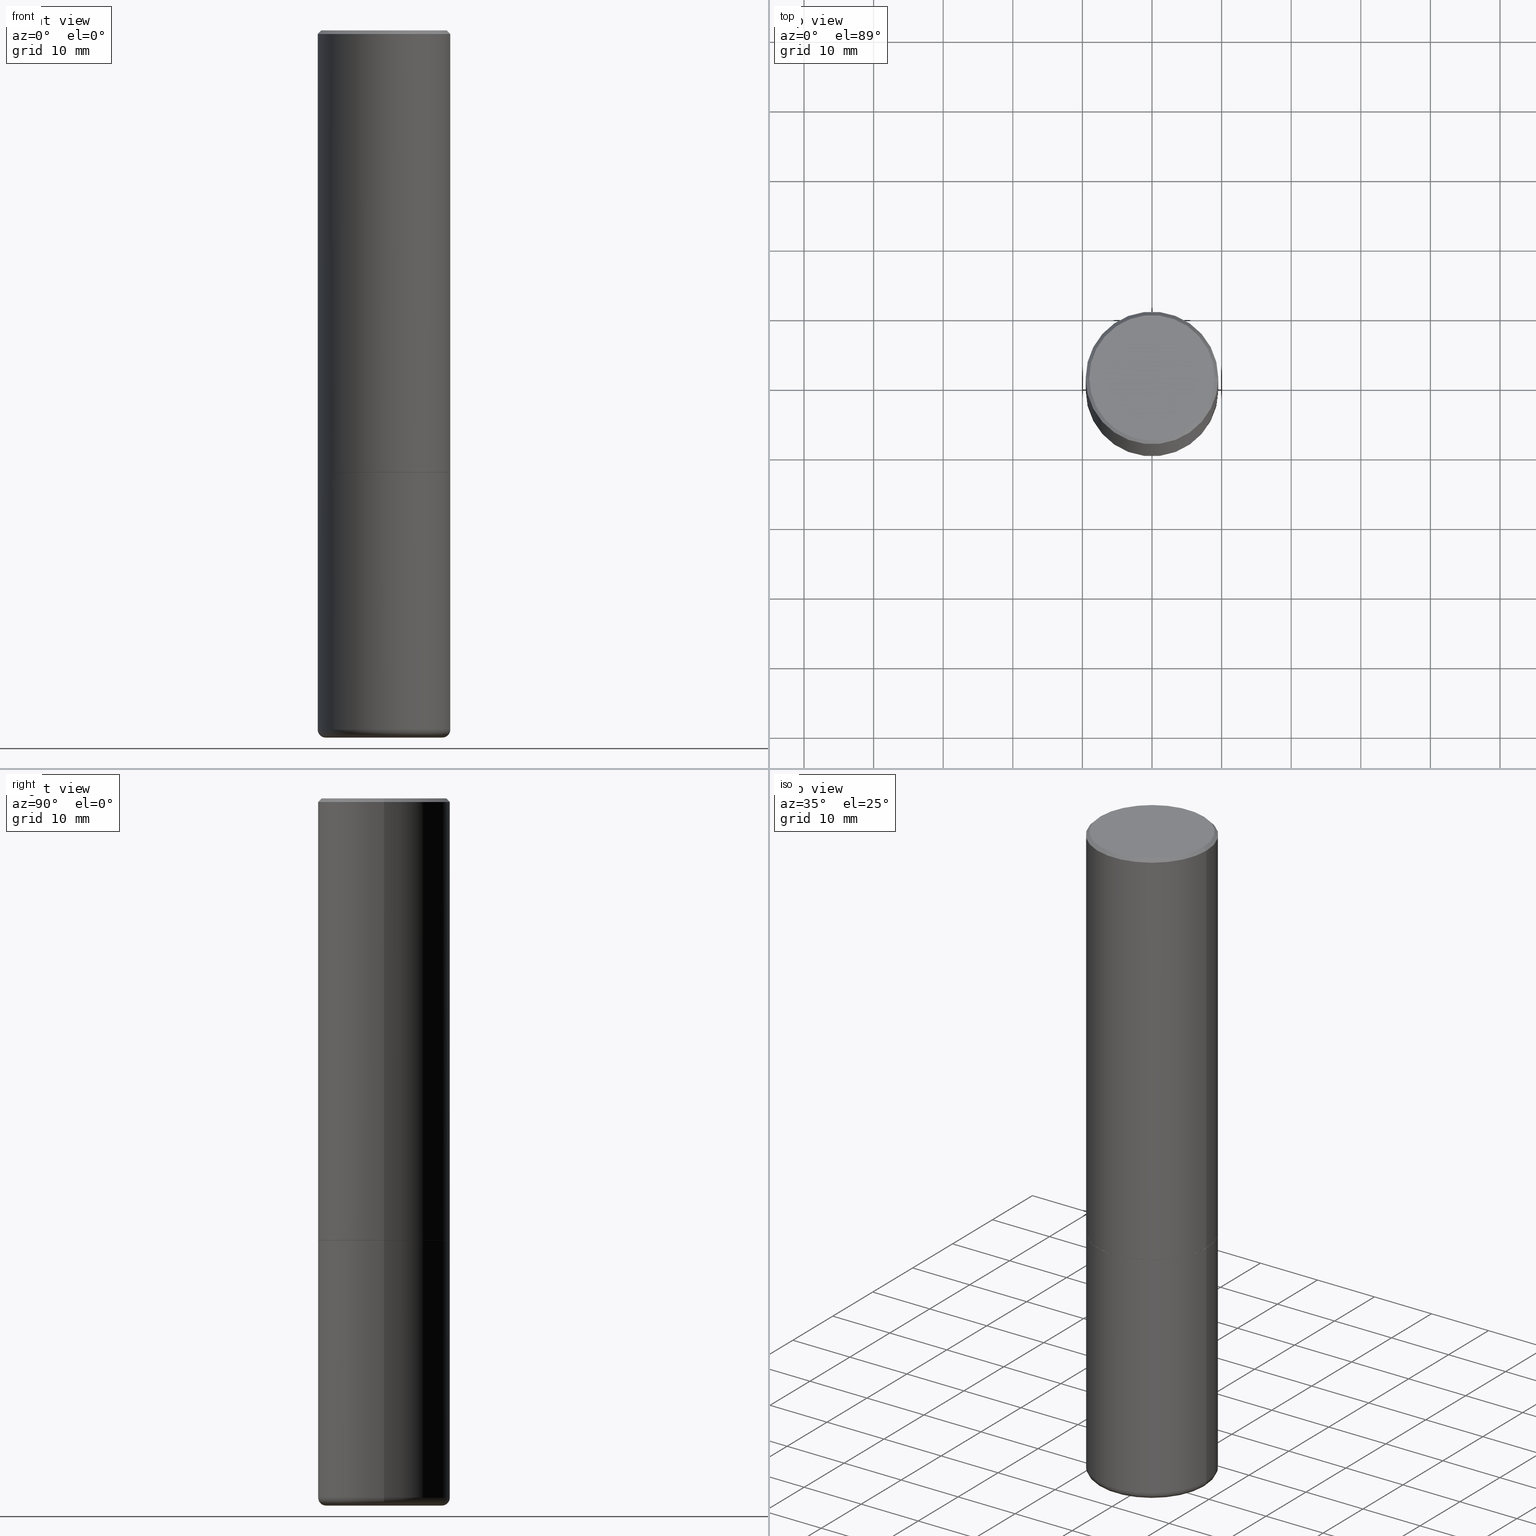
[diagram: canonical four-view strip — front | top / right | iso, engineering-drawing reading convention]
A machine part, canonical four-view strip (front | top / right | iso — engineering-drawing reading convention). The complete STEP part file that produces these views, byte-faithful:
ISO-10303-21;
HEADER;
FILE_DESCRIPTION (( 'STEP AP203' ),
    '1' );
FILE_NAME ('38146.STEP',
    '2023-03-22T20:24:01',
    ( '' ),
    ( '' ),
    'SwSTEP 2.0',
    'SolidWorks 2022',
    '' );
FILE_SCHEMA (( 'CONFIG_CONTROL_DESIGN' ));
ENDSEC;

DATA;
#1 = AXIS2_PLACEMENT_3D ( 'NONE', #344, #43, #179 ) ;
#2 = DIRECTION ( 'NONE',  ( 1.000000000000000000, -6.982962677686266711E-15, 0.000000000000000000 ) ) ;
#3 = DIRECTION ( 'NONE',  ( 0.7071067811865469066, -7.319954787623252890E-15, -0.7071067811865479058 ) ) ;
#4 = ORIENTED_EDGE ( 'NONE', *, *, #259, .F. ) ;
#5 = PERSON_AND_ORGANIZATION_ROLE ( 'creator' ) ;
#6 = CLOSED_SHELL ( 'NONE', ( #350, #76, #153, #9, #56, #408, #184, #111 ) ) ;
#7 = AXIS2_PLACEMENT_3D ( 'NONE', #313, #85, #163 ) ;
#8 = DIRECTION ( 'NONE',  ( -2.445468806185136597E-29, 3.491481338843145583E-15, 1.000000000000000000 ) ) ;
#9 = ADVANCED_FACE ( 'NONE', ( #439 ), #186, .T. ) ;
#10 = EDGE_CURVE ( 'NONE', #161, #16, #36, .T. ) ;
#11 = CARTESIAN_POINT ( 'NONE',  ( -0.3749999999999997780, -8.604328423477052173E-15, -3.955061670936044216 ) ) ;
#12 = LOCAL_TIME ( 16, 24, 1.000000000000000000, #234 ) ;
#13 = CARTESIAN_POINT ( 'NONE',  ( -0.3750000000000000555, -8.604328423477050596E-15, -2.500000000000000000 ) ) ;
#14 = CONICAL_SURFACE ( 'NONE', #1, 0.3749999999999996669, 0.7853981633974476129 ) ;
#15 = ORIENTED_EDGE ( 'NONE', *, *, #58, .F. ) ;
#16 = VERTEX_POINT ( 'NONE', #174 ) ;
#17 = ORIENTED_EDGE ( 'NONE', *, *, #227, .T. ) ;
#18 = VECTOR ( 'NONE', #206, 39.37007874015748854 ) ;
#19 = VERTEX_POINT ( 'NONE', #101 ) ;
#20 = EDGE_CURVE ( 'NONE', #19, #339, #170, .T. ) ;
#21 = PERSON_AND_ORGANIZATION ( #281, #224 ) ;
#22 = ADVANCED_FACE ( 'NONE', ( #364 ), #414, .F. ) ;
#23 = ORIENTED_EDGE ( 'NONE', *, *, #173, .F. ) ;
#24 =( NAMED_UNIT ( * ) PLANE_ANGLE_UNIT ( ) SI_UNIT ( $, .RADIAN. ) );
#25 = APPROVAL_PERSON_ORGANIZATION ( #150, #345, #47 ) ;
#26 = ORIENTED_EDGE ( 'NONE', *, *, #374, .T. ) ;
#27 = CC_DESIGN_SECURITY_CLASSIFICATION ( #380, ( #393 ) ) ;
#28 = PRODUCT_RELATED_PRODUCT_CATEGORY ( 'detail', '', ( #236 ) ) ;
#29 = CYLINDRICAL_SURFACE ( 'NONE', #132, 0.3749999999999998335 ) ;
#30 = DIRECTION ( 'NONE',  ( -2.445468806185136597E-29, 3.491481338843145583E-15, 1.000000000000000000 ) ) ;
#31 = DIRECTION ( 'NONE',  ( 1.000000000000000000, 0.000000000000000000, 0.000000000000000000 ) ) ;
#32 = MANIFOLD_SOLID_BREP ( 'Body-Move/Copy2[1]', #331 ) ;
#33 = EDGE_LOOP ( 'NONE', ( #93, #131, #165, #247 ) ) ;
#34 = DIRECTION ( 'NONE',  ( 1.000000000000000000, -6.982962677686267499E-15, 4.883557194083112901E-29 ) ) ;
#35 = CARTESIAN_POINT ( 'NONE',  ( 0.3276448819690678249, -1.625385733769750424E-14, -3.999999999999999556 ) ) ;
#36 = LINE ( 'NONE', #38, #409 ) ;
#37 = DIRECTION ( 'NONE',  ( -1.000000000000000000, 7.105427357600990815E-15, 0.000000000000000000 ) ) ;
#38 = CARTESIAN_POINT ( 'NONE',  ( 0.3749999999999996669, -2.642516375941185268E-15, -0.02000000000000001776 ) ) ;
#39 = DIRECTION ( 'NONE',  ( -2.445468806185136597E-29, 3.491481338843145583E-15, 1.000000000000000000 ) ) ;
#40 = DATE_AND_TIME ( #75, #121 ) ;
#41 = CIRCLE ( 'NONE', #252, 0.3750000000000000555 ) ;
#42 = CARTESIAN_POINT ( 'NONE',  ( -0.3300000000000000155, -1.146423299003865652E-14, -3.955061670936044216 ) ) ;
#43 = DIRECTION ( 'NONE',  ( 2.445468806185136597E-29, -3.491481338843145583E-15, -1.000000000000000000 ) ) ;
#44 = ORIENTED_EDGE ( 'NONE', *, *, #51, .F. ) ;
#45 = COORDINATED_UNIVERSAL_TIME_OFFSET ( 5, 0, .BEHIND. ) ;
#46 = APPROVAL_DATE_TIME ( #110, #134 ) ;
#47 = APPROVAL_ROLE ( '' ) ;
#48 = AXIS2_PLACEMENT_3D ( 'NONE', #324, #428, #31 ) ;
#49 = AXIS2_PLACEMENT_3D ( 'NONE', #423, #126, #354 ) ;
#50 = DIRECTION ( 'NONE',  ( 1.000000000000000000, -6.982962677686266711E-15, 0.000000000000000000 ) ) ;
#51 = EDGE_CURVE ( 'NONE', #426, #323, #378, .T. ) ;
#52 = ADVANCED_FACE ( 'NONE', ( #301 ), #274, .F. ) ;
#53 = CARTESIAN_POINT ( 'NONE',  ( -0.3549999999999997047, 2.513866563967053491E-15, 4.268512490082953109E-18 ) ) ;
#54 = VECTOR ( 'NONE', #390, 39.37007874015748143 ) ;
#55 = ORIENTED_EDGE ( 'NONE', *, *, #410, .F. ) ;
#56 = ADVANCED_FACE ( 'NONE', ( #329 ), #29, .T. ) ;
#57 = ORIENTED_EDGE ( 'NONE', *, *, #228, .F. ) ;
#58 = EDGE_CURVE ( 'NONE', #416, #357, #269, .T. ) ;
#59 = AXIS2_PLACEMENT_3D ( 'NONE', #172, #399, #383 ) ;
#60 = EDGE_CURVE ( 'NONE', #323, #276, #178, .T. ) ;
#61 = FACE_OUTER_BOUND ( 'NONE', #363, .T. ) ;
#62 = DIRECTION ( 'NONE',  ( -0.9986295347545742773, 6.790662755453671622E-15, -0.05233595624293576470 ) ) ;
#63 = DIRECTION ( 'NONE',  ( -2.445468806185136597E-29, 3.491481338843145583E-15, 1.000000000000000000 ) ) ;
#64 = ORIENTED_EDGE ( 'NONE', *, *, #227, .F. ) ;
#65 = CARTESIAN_POINT ( 'NONE',  ( 9.671979942812559398E-29, -1.380902401804698764E-14, -3.955061670936044216 ) ) ;
#66 = CARTESIAN_POINT ( 'NONE',  ( 2.618611004132411153E-15, 0.3749999999999912847, -2.500000000000001332 ) ) ;
#67 = ORIENTED_EDGE ( 'NONE', *, *, #342, .F. ) ;
#68 = DIRECTION ( 'NONE',  ( -0.7071067811870063169, 7.493145998872012346E-15, 0.7071067811860887176 ) ) ;
#69 = CYLINDRICAL_SURFACE ( 'NONE', #152, 0.3749999999999998335 ) ;
#70 = VECTOR ( 'NONE', #306, 39.37007874015748143 ) ;
#71 = PERSON_AND_ORGANIZATION_ROLE ( 'creator' ) ;
#72 = CARTESIAN_POINT ( 'NONE',  ( 6.113672015462840371E-29, -8.728703347107863365E-15, -2.499999999999999556 ) ) ;
#73 = DIRECTION ( 'NONE',  ( -2.445468806185136597E-29, 3.491481338843145583E-15, 1.000000000000000000 ) ) ;
#74 = CARTESIAN_POINT ( 'NONE',  ( 1.060181831920038737E-27, -1.513658678682455391E-13, -43.35290759950002837 ) ) ;
#75 = CALENDAR_DATE ( 2023, 22, 3 ) ;
#76 = ADVANCED_FACE ( 'NONE', ( #368 ), #69, .T. ) ;
#77 = DIRECTION ( 'NONE',  ( 1.000000000000000000, -6.982962677686268288E-15, 0.000000000000000000 ) ) ;
#78 = VECTOR ( 'NONE', #104, 39.37007874015748143 ) ;
#79 = CARTESIAN_POINT ( 'NONE',  ( 2.478951750578622237E-15, 0.3549999999999997047, -1.237341619044265441E-15 ) ) ;
#80 = EDGE_LOOP ( 'NONE', ( #222, #180, #254, #261 ) ) ;
#81 = CALENDAR_DATE ( 2023, 22, 3 ) ;
#82 = EDGE_LOOP ( 'NONE', ( #125, #314, #223 ) ) ;
#83 = APPROVAL_ROLE ( '' ) ;
#84 = EDGE_CURVE ( 'NONE', #199, #16, #219, .T. ) ;
#85 = DIRECTION ( 'NONE',  ( -2.445468806185136597E-29, 3.491481338843145583E-15, 1.000000000000000000 ) ) ;
#86 = CIRCLE ( 'NONE', #351, 0.3749999999999997780 ) ;
#87 = CARTESIAN_POINT ( 'NONE',  ( 4.890937612370276662E-31, -6.982962677686296539E-17, -0.02000000000000001776 ) ) ;
#88 = DIRECTION ( 'NONE',  ( 1.000000000000000000, -6.982962677686268288E-15, 0.000000000000000000 ) ) ;
#89 = FACE_OUTER_BOUND ( 'NONE', #396, .T. ) ;
#90 = APPLICATION_CONTEXT ( 'configuration controlled 3d designs of mechanical parts and assemblies' ) ;
#91 = LOCAL_TIME ( 16, 24, 1.000000000000000000, #360 ) ;
#92 = AXIS2_PLACEMENT_3D ( 'NONE', #72, #202, #77 ) ;
#93 = ORIENTED_EDGE ( 'NONE', *, *, #319, .F. ) ;
#94 = EDGE_CURVE ( 'NONE', #244, #416, #315, .T. ) ;
#95 = ORIENTED_EDGE ( 'NONE', *, *, #60, .F. ) ;
#96 = ORIENTED_EDGE ( 'NONE', *, *, #94, .F. ) ;
#97 = AXIS2_PLACEMENT_3D ( 'NONE', #371, #73, #205 ) ;
#98 =( NAMED_UNIT ( * ) SI_UNIT ( $, .STERADIAN. ) SOLID_ANGLE_UNIT ( ) );
#99 = DIRECTION ( 'NONE',  ( 1.000000000000000000, -6.982962677686267499E-15, 4.883557194083112901E-29 ) ) ;
#100 = ORIENTED_EDGE ( 'NONE', *, *, #84, .F. ) ;
#101 = CARTESIAN_POINT ( 'NONE',  ( 0.3749999999999997780, -1.642763502217933766E-14, -3.955061670936044216 ) ) ;
#102 = MECHANICAL_CONTEXT ( 'NONE', #90, 'mechanical' ) ;
#103 = VERTEX_POINT ( 'NONE', #11 ) ;
#104 = DIRECTION ( 'NONE',  ( 0.7071067811870063169, -2.468850131087062801E-15, 0.7071067811860887176 ) ) ;
#105 =( LENGTH_UNIT ( ) NAMED_UNIT ( * ) SI_UNIT ( $, .METRE. ) );
#106 = CARTESIAN_POINT ( 'NONE',  ( 6.113672015462842613E-29, -8.728703347107864943E-15, -2.500000000000000000 ) ) ;
#107 = CIRCLE ( 'NONE', #279, 0.04499999999999972772 ) ;
#108 = CARTESIAN_POINT ( 'NONE',  ( 9.739299048042239891E-29, -1.390680994448558072E-14, -3.982828859342549155 ) ) ;
#109 = CARTESIAN_POINT ( 'NONE',  ( 4.890937612370276662E-31, -6.982962677686296539E-17, -0.02000000000000001776 ) ) ;
#110 = DATE_AND_TIME ( #81, #272 ) ;
#111 = ADVANCED_FACE ( 'NONE', ( #123 ), #149, .F. ) ;
#112 = DIRECTION ( 'NONE',  ( 2.445468806185136597E-29, -3.491481338843145583E-15, -1.000000000000000000 ) ) ;
#113 = CARTESIAN_POINT ( 'NONE',  ( -0.3749999999999999445, -1.732985487172565737E-15, -2.499000000000000998 ) ) ;
#114 = CARTESIAN_POINT ( 'NONE',  ( -0.3749999999999996669, 2.548781377355484746E-15, -0.02000000000000001776 ) ) ;
#115 = VERTEX_POINT ( 'NONE', #53 ) ;
#116 = AXIS2_PLACEMENT_3D ( 'NONE', #87, #278, #50 ) ;
#117 = CARTESIAN_POINT ( 'NONE',  ( 9.781875224740545266E-29, -1.396592535537258075E-14, -3.999999999999999556 ) ) ;
#118 = CC_DESIGN_DATE_AND_TIME_ASSIGNMENT ( #335, #146, ( #392 ) ) ;
#119 = ORIENTED_EDGE ( 'NONE', *, *, #410, .T. ) ;
#120 = PERSON_AND_ORGANIZATION ( #281, #224 ) ;
#121 = LOCAL_TIME ( 16, 24, 1.000000000000000000, #181 ) ;
#122 = AXIS2_PLACEMENT_3D ( 'NONE', #308, #340, #34 ) ;
#123 = FACE_OUTER_BOUND ( 'NONE', #433, .T. ) ;
#124 = CC_DESIGN_PERSON_AND_ORGANIZATION_ASSIGNMENT ( #284, #5, ( #393 ) ) ;
#125 = ORIENTED_EDGE ( 'NONE', *, *, #429, .F. ) ;
#126 = DIRECTION ( 'NONE',  ( -2.445468806185136597E-29, 3.491481338843145583E-15, 1.000000000000000000 ) ) ;
#127 = CC_DESIGN_PERSON_AND_ORGANIZATION_ASSIGNMENT ( #210, #379, ( #380 ) ) ;
#128 = CIRCLE ( 'NONE', #97, 0.3750000000000000555 ) ;
#129 = EDGE_LOOP ( 'NONE', ( #265, #424, #256, #64 ) ) ;
#130 = ORIENTED_EDGE ( 'NONE', *, *, #142, .F. ) ;
#131 = ORIENTED_EDGE ( 'NONE', *, *, #94, .T. ) ;
#132 = AXIS2_PLACEMENT_3D ( 'NONE', #168, #299, #436 ) ;
#133 = CARTESIAN_POINT ( 'NONE',  ( -0.3739999999999999991, -6.071273515365087887E-15, -2.499999999999999556 ) ) ;
#134 = APPROVAL ( #148, 'UNSPECIFIED' ) ;
#135 = EDGE_LOOP ( 'NONE', ( #189, #192, #196, #55 ) ) ;
#136 = DIRECTION ( 'NONE',  ( 2.438088387897960049E-29, -3.491481338843145188E-15, -1.000000000000000000 ) ) ;
#137 = PERSON_AND_ORGANIZATION ( #281, #224 ) ;
#138 = PRODUCT_DEFINITION_SHAPE ( 'NONE', 'NONE',  #392 ) ;
#139 = DIRECTION ( 'NONE',  ( -2.445468806185136597E-29, 3.491481338843145583E-15, 1.000000000000000000 ) ) ;
#140 = DIRECTION ( 'NONE',  ( -2.445468806185136597E-29, 3.491481338843145583E-15, 1.000000000000000000 ) ) ;
#141 = FACE_OUTER_BOUND ( 'NONE', #402, .T. ) ;
#142 = EDGE_CURVE ( 'NONE', #288, #199, #151, .T. ) ;
#143 = DIRECTION ( 'NONE',  ( 1.000000000000000000, -6.982962677686264344E-15, 0.000000000000000000 ) ) ;
#144 = DIRECTION ( 'NONE',  ( -2.445468806185136597E-29, 3.491481338843145583E-15, 1.000000000000000000 ) ) ;
#145 = ORIENTED_EDGE ( 'NONE', *, *, #228, .T. ) ;
#146 = DATE_TIME_ROLE ( 'creation_date' ) ;
#147 = CIRCLE ( 'NONE', #59, 0.3549999999999997047 ) ;
#148 = APPROVAL_STATUS ( 'not_yet_approved' ) ;
#149 = PLANE ( 'NONE',  #235 ) ;
#150 = PERSON_AND_ORGANIZATION ( #281, #224 ) ;
#151 = LINE ( 'NONE', #253, #54 ) ;
#152 = AXIS2_PLACEMENT_3D ( 'NONE', #334, #144, #215 ) ;
#153 = ADVANCED_FACE ( 'NONE', ( #89 ), #14, .T. ) ;
#154 = ORIENTED_EDGE ( 'NONE', *, *, #203, .T. ) ;
#155 = LINE ( 'NONE', #353, #286 ) ;
#156 = ORIENTED_EDGE ( 'NONE', *, *, #319, .T. ) ;
#157 = EDGE_CURVE ( 'NONE', #115, #199, #277, .T. ) ;
#158 = CC_DESIGN_APPROVAL ( #134, ( #380 ) ) ;
#159 = FACE_OUTER_BOUND ( 'NONE', #129, .T. ) ;
#160 = AXIS2_PLACEMENT_3D ( 'NONE', #367, #140, #332 ) ;
#161 = VERTEX_POINT ( 'NONE', #382 ) ;
#162 = ORIENTED_EDGE ( 'NONE', *, *, #311, .T. ) ;
#163 = DIRECTION ( 'NONE',  ( 1.000000000000000000, -6.982962677686265922E-15, 4.876231632511992107E-29 ) ) ;
#164 = DIRECTION ( 'NONE',  ( 2.445468806185136597E-29, -3.491481338843145583E-15, -1.000000000000000000 ) ) ;
#165 = ORIENTED_EDGE ( 'NONE', *, *, #58, .T. ) ;
#166 = EDGE_LOOP ( 'NONE', ( #400, #425, #386, #67 ) ) ;
#167 = AXIS2_PLACEMENT_3D ( 'NONE', #398, #63, #99 ) ;
#168 = CARTESIAN_POINT ( 'NONE',  ( 0.000000000000000000, 0.000000000000000000, 0.000000000000000000 ) ) ;
#169 = FACE_OUTER_BOUND ( 'NONE', #209, .T. ) ;
#170 = LINE ( 'NONE', #231, #70 ) ;
#171 = DIRECTION ( 'NONE',  ( 1.000000000000000000, -6.982962677686266711E-15, 0.000000000000000000 ) ) ;
#172 = CARTESIAN_POINT ( 'NONE',  ( -1.043851414335219820E-46, 1.490343170380447200E-32, 4.268512490100411279E-18 ) ) ;
#173 = EDGE_CURVE ( 'NONE', #103, #19, #86, .T. ) ;
#174 = CARTESIAN_POINT ( 'NONE',  ( 0.3749999999999996669, -2.642516375941185268E-15, -0.02000000000000001776 ) ) ;
#175 = ADVANCED_FACE ( 'NONE', ( #61 ), #287, .T. ) ;
#176 = DIRECTION ( 'NONE',  ( -2.445468806185136597E-29, 3.491481338843145583E-15, 1.000000000000000000 ) ) ;
#177 = CC_DESIGN_APPROVAL ( #249, ( #392 ) ) ;
#178 = CIRCLE ( 'NONE', #394, 0.3276448819690678249 ) ;
#179 = DIRECTION ( 'NONE',  ( -1.000000000000000000, 6.982962677686266711E-15, 0.000000000000000000 ) ) ;
#180 = ORIENTED_EDGE ( 'NONE', *, *, #312, .F. ) ;
#181 = COORDINATED_UNIVERSAL_TIME_OFFSET ( 5, 0, .BEHIND. ) ;
#182 = AXIS2_PLACEMENT_3D ( 'NONE', #214, #8, #415 ) ;
#183 = ADVANCED_FACE ( 'NONE', ( #159 ), #389, .T. ) ;
#184 = ADVANCED_FACE ( 'NONE', ( #294 ), #230, .F. ) ;
#185 = APPROVAL_PERSON_ORGANIZATION ( #120, #134, #83 ) ;
#186 = CONICAL_SURFACE ( 'NONE', #297, 0.3749999999999996669, 0.7853981633974476129 ) ;
#187 = ORIENTED_EDGE ( 'NONE', *, *, #391, .T. ) ;
#188 = DIRECTION ( 'NONE',  ( -2.445468806185136877E-29, 3.491481338843145188E-15, 1.000000000000000000 ) ) ;
#189 = ORIENTED_EDGE ( 'NONE', *, *, #421, .F. ) ;
#190 = ORIENTED_EDGE ( 'NONE', *, *, #421, .T. ) ;
#191 = DESIGN_CONTEXT ( 'detailed design', #341, 'design' ) ;
#192 = ORIENTED_EDGE ( 'NONE', *, *, #173, .T. ) ;
#193 = DIRECTION ( 'NONE',  ( 1.000000000000000000, -6.982962677686264344E-15, 0.000000000000000000 ) ) ;
#194 = DIRECTION ( 'NONE',  ( 1.000000000000000000, -6.982962677686268288E-15, 0.000000000000000000 ) ) ;
#195 = DIRECTION ( 'NONE',  ( -2.438088387897960049E-29, 3.491481338843145188E-15, 1.000000000000000000 ) ) ;
#196 = ORIENTED_EDGE ( 'NONE', *, *, #20, .T. ) ;
#197 = DIRECTION ( 'NONE',  ( -1.000000000000000000, 6.982962677686265922E-15, -4.876176775795935793E-29 ) ) ;
#198 = CARTESIAN_POINT ( 'NONE',  ( 6.113672015462840371E-29, -8.728703347107863365E-15, -2.499999999999999556 ) ) ;
#199 = VERTEX_POINT ( 'NONE', #282 ) ;
#200 = CIRCLE ( 'NONE', #7, 0.3549999999999997047 ) ;
#201 = CALENDAR_DATE ( 2023, 22, 3 ) ;
#202 = DIRECTION ( 'NONE',  ( -2.445468806185136597E-29, 3.491481338843145583E-15, 1.000000000000000000 ) ) ;
#203 = EDGE_CURVE ( 'NONE', #276, #323, #370, .T. ) ;
#204 = APPROVAL_STATUS ( 'not_yet_approved' ) ;
#205 = DIRECTION ( 'NONE',  ( 1.000000000000000000, -6.982962677686264344E-15, 0.000000000000000000 ) ) ;
#206 = DIRECTION ( 'NONE',  ( 0.9986295347545742773, -7.033825938271995545E-15, -0.05233595624293576470 ) ) ;
#207 = APPROVAL_PERSON_ORGANIZATION ( #21, #249, #405 ) ;
#208 = AXIS2_PLACEMENT_3D ( 'NONE', #117, #239, #298 ) ;
#209 = EDGE_LOOP ( 'NONE', ( #412, #154, #17, #23 ) ) ;
#210 = PERSON_AND_ORGANIZATION ( #281, #224 ) ;
#211 = ADVANCED_FACE ( 'NONE', ( #434 ), #403, .T. ) ;
#212 = CARTESIAN_POINT ( 'NONE',  ( -0.3276448819690678249, -1.139117860319911348E-14, -3.999999999999999556 ) ) ;
#213 = CONICAL_SURFACE ( 'NONE', #346, 0.3739999999999999991, 0.7853981633980972044 ) ;
#214 = CARTESIAN_POINT ( 'NONE',  ( 6.113672015462840371E-29, -8.728703347107863365E-15, -2.499999999999999556 ) ) ;
#215 = DIRECTION ( 'NONE',  ( 1.000000000000000000, -6.982962677686265922E-15, 4.876176775795935793E-29 ) ) ;
#216 = AXIS2_PLACEMENT_3D ( 'NONE', #65, #435, #333 ) ;
#217 = ADVANCED_BREP_SHAPE_REPRESENTATION ( '38146', ( #32, #317, #48 ), #285 ) ;
#218 = ADVANCED_FACE ( 'NONE', ( #169 ), #381, .T. ) ;
#219 = CIRCLE ( 'NONE', #116, 0.3749999999999996669 ) ;
#220 = ORIENTED_EDGE ( 'NONE', *, *, #320, .T. ) ;
#221 = CARTESIAN_POINT ( 'NONE',  ( 9.671979942812559398E-29, -1.380902401804698764E-14, -3.955061670936044216 ) ) ;
#222 = ORIENTED_EDGE ( 'NONE', *, *, #10, .F. ) ;
#223 = ORIENTED_EDGE ( 'NONE', *, *, #203, .F. ) ;
#224 = ORGANIZATION ( 'UNSPECIFIED', 'UNSPECIFIED', '' ) ;
#225 = DIRECTION ( 'NONE',  ( -2.445468806185136877E-29, 3.491481338843145188E-15, 1.000000000000000000 ) ) ;
#226 = AXIS2_PLACEMENT_3D ( 'NONE', #74, #112, #310 ) ;
#227 = EDGE_CURVE ( 'NONE', #323, #19, #107, .T. ) ;
#228 = EDGE_CURVE ( 'NONE', #339, #366, #41, .T. ) ;
#229 = APPROVAL_DATE_TIME ( #369, #249 ) ;
#230 = PLANE ( 'NONE',  #289 ) ;
#231 = CARTESIAN_POINT ( 'NONE',  ( 0.3749999999999998890, -2.618611004132349228E-15, 1.828566290923475362E-29 ) ) ;
#232 = DIRECTION ( 'NONE',  ( 1.000000000000000000, -6.982962677686268288E-15, 0.000000000000000000 ) ) ;
#233 = AXIS2_PLACEMENT_3D ( 'NONE', #296, #164, #407 ) ;
#234 = COORDINATED_UNIVERSAL_TIME_OFFSET ( 5, 0, .BEHIND. ) ;
#235 = AXIS2_PLACEMENT_3D ( 'NONE', #79, #347, #283 ) ;
#236 = PRODUCT ( '38146', '38146', '', ( #102 ) ) ;
#237 = LINE ( 'NONE', #365, #356 ) ;
#238 = DIRECTION ( 'NONE',  ( 2.445468806185136597E-29, -3.491481338843145583E-15, -1.000000000000000000 ) ) ;
#239 = DIRECTION ( 'NONE',  ( -2.445468806185136597E-29, 3.491481338843145583E-15, 1.000000000000000000 ) ) ;
#240 = DATE_AND_TIME ( #316, #243 ) ;
#241 = AXIS2_PLACEMENT_3D ( 'NONE', #275, #39, #326 ) ;
#242 = APPROVAL_DATE_TIME ( #40, #345 ) ;
#243 = LOCAL_TIME ( 16, 24, 1.000000000000000000, #385 ) ;
#244 = VERTEX_POINT ( 'NONE', #440 ) ;
#245 = DIRECTION ( 'NONE',  ( -0.7071067811865469066, 2.468850131082251144E-15, -0.7071067811865479058 ) ) ;
#246 = SECURITY_CLASSIFICATION_LEVEL ( 'unclassified' ) ;
#247 = ORIENTED_EDGE ( 'NONE', *, *, #374, .F. ) ;
#248 = CARTESIAN_POINT ( 'NONE',  ( 0.3750000000000000555, -1.134382286990137353E-14, -2.499000000000000998 ) ) ;
#249 = APPROVAL ( #204, 'UNSPECIFIED' ) ;
#250 = DATE_TIME_ROLE ( 'classification_date' ) ;
#251 = EDGE_CURVE ( 'NONE', #357, #288, #128, .T. ) ;
#252 = AXIS2_PLACEMENT_3D ( 'NONE', #106, #377, #143 ) ;
#253 = CARTESIAN_POINT ( 'NONE',  ( -0.3749999999999998335, 2.664535259100374514E-15, -1.844600658845588757E-29 ) ) ;
#254 = ORIENTED_EDGE ( 'NONE', *, *, #157, .T. ) ;
#255 = VECTOR ( 'NONE', #68, 39.37007874015748143 ) ;
#256 = ORIENTED_EDGE ( 'NONE', *, *, #320, .F. ) ;
#257 = ORIENTED_EDGE ( 'NONE', *, *, #312, .T. ) ;
#258 = CC_DESIGN_PERSON_AND_ORGANIZATION_ASSIGNMENT ( #375, #280, ( #393 ) ) ;
#259 = EDGE_CURVE ( 'NONE', #416, #244, #349, .T. ) ;
#260 = EDGE_CURVE ( 'NONE', #276, #103, #358, .T. ) ;
#261 = ORIENTED_EDGE ( 'NONE', *, *, #84, .T. ) ;
#262 = CC_DESIGN_APPROVAL ( #345, ( #393 ) ) ;
#263 = CALENDAR_DATE ( 2023, 22, 3 ) ;
#264 = AXIS2_PLACEMENT_3D ( 'NONE', #42, #337, #37 ) ;
#265 = ORIENTED_EDGE ( 'NONE', *, *, #60, .T. ) ;
#266 = CC_DESIGN_DATE_AND_TIME_ASSIGNMENT ( #240, #250, ( #380 ) ) ;
#267 = EDGE_LOOP ( 'NONE', ( #130, #26, #318, #100 ) ) ;
#268 = CARTESIAN_POINT ( 'NONE',  ( 6.111226546656659252E-29, -8.725211865769023513E-15, -2.499000000000000998 ) ) ;
#269 = LINE ( 'NONE', #404, #78 ) ;
#270 = APPLICATION_PROTOCOL_DEFINITION ( 'international standard', 'config_control_design', 1994, #341 ) ;
#271 = PERSON_AND_ORGANIZATION ( #281, #224 ) ;
#272 = LOCAL_TIME ( 16, 24, 1.000000000000000000, #45 ) ;
#273 = CIRCLE ( 'NONE', #401, 0.3750000000000000555 ) ;
#274 = PLANE ( 'NONE',  #431 ) ;
#275 = CARTESIAN_POINT ( 'NONE',  ( 6.113672015462842613E-29, -8.728703347107864943E-15, -2.500000000000000000 ) ) ;
#276 = VERTEX_POINT ( 'NONE', #212 ) ;
#277 = LINE ( 'NONE', #114, #397 ) ;
#278 = DIRECTION ( 'NONE',  ( -2.445468806185136597E-29, 3.491481338843145583E-15, 1.000000000000000000 ) ) ;
#279 = AXIS2_PLACEMENT_3D ( 'NONE', #373, #406, #2 ) ;
#280 = PERSON_AND_ORGANIZATION_ROLE ( 'design_supplier' ) ;
#281 = PERSON ( 'UNSPECIFIED', 'UNSPECIFIED', 'UNSPECIFIED', ('UNSPECIFIED'), ('UNSPECIFIED'), ('UNSPECIFIED') ) ;
#282 = CARTESIAN_POINT ( 'NONE',  ( -0.3749999999999996669, 2.548781377355484746E-15, -0.02000000000000001776 ) ) ;
#283 = DIRECTION ( 'NONE',  ( -1.000000000000000000, 6.982962677686265922E-15, -4.876176775795935793E-29 ) ) ;
#284 = PERSON_AND_ORGANIZATION ( #281, #224 ) ;
#285 =( GEOMETRIC_REPRESENTATION_CONTEXT ( 3 ) GLOBAL_UNCERTAINTY_ASSIGNED_CONTEXT ( ( #305 ) ) GLOBAL_UNIT_ASSIGNED_CONTEXT ( ( #307, #24, #98 ) ) REPRESENTATION_CONTEXT ( 'NONE', 'WORKASPACE' ) );
#286 = VECTOR ( 'NONE', #188, 39.37007874015748143 ) ;
#287 = CYLINDRICAL_SURFACE ( 'NONE', #49, 0.3749999999999998890 ) ;
#288 = VERTEX_POINT ( 'NONE', #113 ) ;
#289 = AXIS2_PLACEMENT_3D ( 'NONE', #361, #195, #327 ) ;
#290 = ORIENTED_EDGE ( 'NONE', *, *, #311, .F. ) ;
#291 = DIRECTION ( 'NONE',  ( 1.000000000000000000, -6.982962677686266711E-15, 0.000000000000000000 ) ) ;
#292 = ORIENTED_EDGE ( 'NONE', *, *, #251, .F. ) ;
#293 = FACE_OUTER_BOUND ( 'NONE', #33, .T. ) ;
#294 = FACE_OUTER_BOUND ( 'NONE', #384, .T. ) ;
#295 = ORIENTED_EDGE ( 'NONE', *, *, #20, .F. ) ;
#296 = CARTESIAN_POINT ( 'NONE',  ( 1.060181831920038737E-27, -1.513658678682455391E-13, -43.35290759950002837 ) ) ;
#297 = AXIS2_PLACEMENT_3D ( 'NONE', #109, #238, #376 ) ;
#298 = DIRECTION ( 'NONE',  ( 1.000000000000000000, -6.982962677686268288E-15, 0.000000000000000000 ) ) ;
#299 = DIRECTION ( 'NONE',  ( -2.445468806185136597E-29, 3.491481338843145583E-15, 1.000000000000000000 ) ) ;
#300 = CARTESIAN_POINT ( 'NONE',  ( 0.3750000000000000555, -1.134731435124021338E-14, -2.500000000000000000 ) ) ;
#301 = FACE_OUTER_BOUND ( 'NONE', #430, .T. ) ;
#302 = CARTESIAN_POINT ( 'NONE',  ( -0.3749999999999998890, 2.664535259100374908E-15, -1.844600658845589038E-29 ) ) ;
#303 = DIRECTION ( 'NONE',  ( -2.445468806185136597E-29, 3.491481338843145583E-15, 1.000000000000000000 ) ) ;
#304 = EDGE_LOOP ( 'NONE', ( #44, #325, #95 ) ) ;
#305 = UNCERTAINTY_MEASURE_WITH_UNIT (LENGTH_MEASURE( 1.000000000000000082E-05 ), #307, 'distance_accuracy_value', 'NONE');
#306 = DIRECTION ( 'NONE',  ( -2.445468806185136877E-29, 3.491481338843145188E-15, 1.000000000000000000 ) ) ;
#307 =( CONVERSION_BASED_UNIT ( 'INCH', #359 ) LENGTH_UNIT ( ) NAMED_UNIT ( #388 ) );
#308 = CARTESIAN_POINT ( 'NONE',  ( 9.671979942812559398E-29, -1.380902401804698764E-14, -3.955061670936044216 ) ) ;
#309 = CONICAL_SURFACE ( 'NONE', #343, 0.3739999999999999991, 0.7853981633980972044 ) ;
#310 = DIRECTION ( 'NONE',  ( -1.000000000000000000, 6.982962677686265922E-15, 0.000000000000000000 ) ) ;
#311 = EDGE_CURVE ( 'NONE', #161, #115, #147, .T. ) ;
#312 = EDGE_CURVE ( 'NONE', #115, #161, #200, .T. ) ;
#313 = CARTESIAN_POINT ( 'NONE',  ( -1.043851414335219820E-46, 1.490343170380447200E-32, 4.268512490100411279E-18 ) ) ;
#314 = ORIENTED_EDGE ( 'NONE', *, *, #51, .T. ) ;
#315 = CIRCLE ( 'NONE', #182, 0.3739999999999999991 ) ;
#316 = CALENDAR_DATE ( 2023, 22, 3 ) ;
#317 = MANIFOLD_SOLID_BREP ( 'Body-Move/Copy2[2]', #6 ) ;
#318 = ORIENTED_EDGE ( 'NONE', *, *, #342, .T. ) ;
#319 = EDGE_CURVE ( 'NONE', #244, #288, #441, .T. ) ;
#320 = EDGE_CURVE ( 'NONE', #19, #103, #321, .T. ) ;
#321 = CIRCLE ( 'NONE', #216, 0.3749999999999997780 ) ;
#322 = DIRECTION ( 'NONE',  ( -2.445468806185136597E-29, 3.491481338843145583E-15, 1.000000000000000000 ) ) ;
#323 = VERTEX_POINT ( 'NONE', #35 ) ;
#324 = CARTESIAN_POINT ( 'NONE',  ( 0.000000000000000000, 0.000000000000000000, 0.000000000000000000 ) ) ;
#325 = ORIENTED_EDGE ( 'NONE', *, *, #429, .T. ) ;
#326 = DIRECTION ( 'NONE',  ( 1.000000000000000000, -6.982962677686264344E-15, 0.000000000000000000 ) ) ;
#327 = DIRECTION ( 'NONE',  ( 1.000000000000000000, -6.982962677686265922E-15, 4.876176775795935793E-29 ) ) ;
#328 = ORIENTED_EDGE ( 'NONE', *, *, #259, .T. ) ;
#329 = FACE_OUTER_BOUND ( 'NONE', #267, .T. ) ;
#330 = PERSON_AND_ORGANIZATION_ROLE ( 'design_owner' ) ;
#331 = CLOSED_SHELL ( 'NONE', ( #422, #183, #175, #52, #211, #218, #22 ) ) ;
#332 = DIRECTION ( 'NONE',  ( 1.000000000000000000, -6.982962677686266711E-15, 4.876176775795935793E-29 ) ) ;
#333 = DIRECTION ( 'NONE',  ( 1.000000000000000000, -6.982962677686266711E-15, 0.000000000000000000 ) ) ;
#334 = CARTESIAN_POINT ( 'NONE',  ( 0.000000000000000000, 0.000000000000000000, 0.000000000000000000 ) ) ;
#335 = DATE_AND_TIME ( #201, #91 ) ;
#336 = CARTESIAN_POINT ( 'NONE',  ( 6.113672015462840371E-29, -8.728703347107863365E-15, -2.499999999999999556 ) ) ;
#337 = DIRECTION ( 'NONE',  ( 7.105427357601001859E-15, 1.000000000000000000, -3.491481338843145583E-15 ) ) ;
#338 = DIRECTION ( 'NONE',  ( -2.445468806185136597E-29, 3.491481338843145583E-15, 1.000000000000000000 ) ) ;
#339 = VERTEX_POINT ( 'NONE', #300 ) ;
#340 = DIRECTION ( 'NONE',  ( -2.445468806185136597E-29, 3.491481338843145583E-15, 1.000000000000000000 ) ) ;
#341 = APPLICATION_CONTEXT ( 'configuration controlled 3d designs of mechanical parts and assemblies' ) ;
#342 = EDGE_CURVE ( 'NONE', #357, #16, #155, .T. ) ;
#343 = AXIS2_PLACEMENT_3D ( 'NONE', #336, #303, #88 ) ;
#344 = CARTESIAN_POINT ( 'NONE',  ( 4.890937612370276662E-31, -6.982962677686296539E-17, -0.02000000000000001776 ) ) ;
#345 = APPROVAL ( #418, 'UNSPECIFIED' ) ;
#346 = AXIS2_PLACEMENT_3D ( 'NONE', #198, #176, #194 ) ;
#347 = DIRECTION ( 'NONE',  ( 2.438088387897960049E-29, -3.491481338843145188E-15, -1.000000000000000000 ) ) ;
#348 = CONICAL_SURFACE ( 'NONE', #233, 751.2258538476835383, 1.518436449235074814 ) ;
#349 = CIRCLE ( 'NONE', #92, 0.3739999999999999991 ) ;
#350 = ADVANCED_FACE ( 'NONE', ( #141 ), #309, .T. ) ;
#351 = AXIS2_PLACEMENT_3D ( 'NONE', #221, #322, #291 ) ;
#352 = CARTESIAN_POINT ( 'NONE',  ( 4.890937612370276662E-31, -6.982962677686296539E-17, -0.02000000000000001776 ) ) ;
#353 = CARTESIAN_POINT ( 'NONE',  ( 0.3749999999999998335, -2.618611004132348439E-15, 1.828566290923475082E-29 ) ) ;
#354 = DIRECTION ( 'NONE',  ( 1.000000000000000000, -6.982962677686266711E-15, 4.876176775795935793E-29 ) ) ;
#355 = ORIENTED_EDGE ( 'NONE', *, *, #10, .T. ) ;
#356 = VECTOR ( 'NONE', #62, 39.37007874015748854 ) ;
#357 = VERTEX_POINT ( 'NONE', #248 ) ;
#358 = CIRCLE ( 'NONE', #264, 0.04499999999999972772 ) ;
#359 = LENGTH_MEASURE_WITH_UNIT ( LENGTH_MEASURE( 0.02539999999999999897 ), #105 );
#360 = COORDINATED_UNIVERSAL_TIME_OFFSET ( 5, 0, .BEHIND. ) ;
#361 = CARTESIAN_POINT ( 'NONE',  ( 6.113672015462842613E-29, -8.728703347107864943E-15, -2.500000000000000000 ) ) ;
#362 = CIRCLE ( 'NONE', #241, 0.3750000000000000555 ) ;
#363 = EDGE_LOOP ( 'NONE', ( #220, #190, #57, #295 ) ) ;
#364 = FACE_OUTER_BOUND ( 'NONE', #304, .T. ) ;
#365 = CARTESIAN_POINT ( 'NONE',  ( -8.373062850419129416E-19, -1.390597263820044118E-14, -3.982828859342549155 ) ) ;
#366 = VERTEX_POINT ( 'NONE', #13 ) ;
#367 = CARTESIAN_POINT ( 'NONE',  ( 0.000000000000000000, 0.000000000000000000, 0.000000000000000000 ) ) ;
#368 = FACE_OUTER_BOUND ( 'NONE', #166, .T. ) ;
#369 = DATE_AND_TIME ( #263, #12 ) ;
#370 = CIRCLE ( 'NONE', #208, 0.3276448819690678249 ) ;
#371 = CARTESIAN_POINT ( 'NONE',  ( 6.111226546656659252E-29, -8.725211865769023513E-15, -2.499000000000000998 ) ) ;
#372 = LINE ( 'NONE', #302, #419 ) ;
#373 = CARTESIAN_POINT ( 'NONE',  ( 0.3300000000000000155, -1.611340170168345755E-14, -3.955061670936044216 ) ) ;
#374 = EDGE_CURVE ( 'NONE', #288, #357, #273, .T. ) ;
#375 = PERSON_AND_ORGANIZATION ( #281, #224 ) ;
#376 = DIRECTION ( 'NONE',  ( -1.000000000000000000, 6.982962677686266711E-15, 0.000000000000000000 ) ) ;
#377 = DIRECTION ( 'NONE',  ( -2.445468806185136597E-29, 3.491481338843145583E-15, 1.000000000000000000 ) ) ;
#378 = LINE ( 'NONE', #442, #18 ) ;
#379 = PERSON_AND_ORGANIZATION_ROLE ( 'classification_officer' ) ;
#380 = SECURITY_CLASSIFICATION ( '', '', #246 ) ;
#381 = TOROIDAL_SURFACE ( 'NONE', #122, 0.3300000000000000155, 0.04499999999999971384 ) ;
#382 = CARTESIAN_POINT ( 'NONE',  ( 0.3549999999999997047, -2.538996582575038287E-15, 4.268512490117958041E-18 ) ) ;
#383 = DIRECTION ( 'NONE',  ( 1.000000000000000000, -6.982962677686265922E-15, 4.876231632511992107E-29 ) ) ;
#384 = EDGE_LOOP ( 'NONE', ( #4, #96 ) ) ;
#385 = COORDINATED_UNIVERSAL_TIME_OFFSET ( 5, 0, .BEHIND. ) ;
#386 = ORIENTED_EDGE ( 'NONE', *, *, #391, .F. ) ;
#387 = ORIENTED_EDGE ( 'NONE', *, *, #157, .F. ) ;
#388 = DIMENSIONAL_EXPONENTS ( 1.000000000000000000, 0.000000000000000000, 0.000000000000000000, 0.000000000000000000, 0.000000000000000000, 0.000000000000000000, 0.000000000000000000 ) ;
#389 = TOROIDAL_SURFACE ( 'NONE', #167, 0.3300000000000000155, 0.04499999999999971384 ) ;
#390 = DIRECTION ( 'NONE',  ( -2.445468806185136877E-29, 3.491481338843145188E-15, 1.000000000000000000 ) ) ;
#391 = EDGE_CURVE ( 'NONE', #16, #199, #417, .T. ) ;
#392 = PRODUCT_DEFINITION ( 'UNKNOWN', '', #393, #191 ) ;
#393 = PRODUCT_DEFINITION_FORMATION_WITH_SPECIFIED_SOURCE ( 'ANY', '', #236, .NOT_KNOWN. ) ;
#394 = AXIS2_PLACEMENT_3D ( 'NONE', #437, #139, #232 ) ;
#395 = AXIS2_PLACEMENT_3D ( 'NONE', #352, #338, #171 ) ;
#396 = EDGE_LOOP ( 'NONE', ( #290, #355, #187, #387 ) ) ;
#397 = VECTOR ( 'NONE', #245, 39.37007874015748854 ) ;
#398 = CARTESIAN_POINT ( 'NONE',  ( 9.671979942812559398E-29, -1.380902401804698764E-14, -3.955061670936044216 ) ) ;
#399 = DIRECTION ( 'NONE',  ( -2.445468806185136597E-29, 3.491481338843145583E-15, 1.000000000000000000 ) ) ;
#400 = ORIENTED_EDGE ( 'NONE', *, *, #251, .T. ) ;
#401 = AXIS2_PLACEMENT_3D ( 'NONE', #268, #30, #193 ) ;
#402 = EDGE_LOOP ( 'NONE', ( #328, #156, #292, #15 ) ) ;
#403 = CYLINDRICAL_SURFACE ( 'NONE', #160, 0.3749999999999998890 ) ;
#404 = CARTESIAN_POINT ( 'NONE',  ( 0.3739999999999999991, -1.134033138856252737E-14, -2.499999999999999556 ) ) ;
#405 = APPROVAL_ROLE ( '' ) ;
#406 = DIRECTION ( 'NONE',  ( -6.982962677686266711E-15, -1.000000000000000000, 3.491481338843145583E-15 ) ) ;
#407 = DIRECTION ( 'NONE',  ( -1.000000000000000000, 6.982962677686265922E-15, 0.000000000000000000 ) ) ;
#408 = ADVANCED_FACE ( 'NONE', ( #293 ), #213, .T. ) ;
#409 = VECTOR ( 'NONE', #3, 39.37007874015748854 ) ;
#410 = EDGE_CURVE ( 'NONE', #366, #339, #362, .T. ) ;
#411 = CARTESIAN_POINT ( 'NONE',  ( 0.3739999999999999991, -1.134033138856252737E-14, -2.499999999999999556 ) ) ;
#412 = ORIENTED_EDGE ( 'NONE', *, *, #260, .F. ) ;
#413 = SHAPE_DEFINITION_REPRESENTATION ( #138, #217 ) ;
#414 = CONICAL_SURFACE ( 'NONE', #226, 751.2258538476835383, 1.518436449235074814 ) ;
#415 = DIRECTION ( 'NONE',  ( 1.000000000000000000, -6.982962677686268288E-15, 0.000000000000000000 ) ) ;
#416 = VERTEX_POINT ( 'NONE', #411 ) ;
#417 = CIRCLE ( 'NONE', #395, 0.3749999999999996669 ) ;
#418 = APPROVAL_STATUS ( 'not_yet_approved' ) ;
#419 = VECTOR ( 'NONE', #225, 39.37007874015748143 ) ;
#420 = CC_DESIGN_PERSON_AND_ORGANIZATION_ASSIGNMENT ( #271, #71, ( #392 ) ) ;
#421 = EDGE_CURVE ( 'NONE', #103, #366, #372, .T. ) ;
#422 = ADVANCED_FACE ( 'NONE', ( #432 ), #348, .F. ) ;
#423 = CARTESIAN_POINT ( 'NONE',  ( 0.000000000000000000, 0.000000000000000000, 0.000000000000000000 ) ) ;
#424 = ORIENTED_EDGE ( 'NONE', *, *, #260, .T. ) ;
#425 = ORIENTED_EDGE ( 'NONE', *, *, #142, .T. ) ;
#426 = VERTEX_POINT ( 'NONE', #108 ) ;
#427 = CC_DESIGN_PERSON_AND_ORGANIZATION_ASSIGNMENT ( #137, #330, ( #236 ) ) ;
#428 = DIRECTION ( 'NONE',  ( 0.000000000000000000, 0.000000000000000000, 1.000000000000000000 ) ) ;
#429 = EDGE_CURVE ( 'NONE', #426, #276, #237, .T. ) ;
#430 = EDGE_LOOP ( 'NONE', ( #145, #119 ) ) ;
#431 = AXIS2_PLACEMENT_3D ( 'NONE', #66, #136, #197 ) ;
#432 = FACE_OUTER_BOUND ( 'NONE', #82, .T. ) ;
#433 = EDGE_LOOP ( 'NONE', ( #257, #162 ) ) ;
#434 = FACE_OUTER_BOUND ( 'NONE', #135, .T. ) ;
#435 = DIRECTION ( 'NONE',  ( -2.445468806185136597E-29, 3.491481338843145583E-15, 1.000000000000000000 ) ) ;
#436 = DIRECTION ( 'NONE',  ( 1.000000000000000000, -6.982962677686265922E-15, 4.876176775795935793E-29 ) ) ;
#437 = CARTESIAN_POINT ( 'NONE',  ( 9.781875224740545266E-29, -1.396592535537258075E-14, -3.999999999999999556 ) ) ;
#438 = APPLICATION_PROTOCOL_DEFINITION ( 'international standard', 'config_control_design', 1994, #90 ) ;
#439 = FACE_OUTER_BOUND ( 'NONE', #80, .T. ) ;
#440 = CARTESIAN_POINT ( 'NONE',  ( -0.3739999999999999991, -6.065975061016867852E-15, -2.499999999999999556 ) ) ;
#441 = LINE ( 'NONE', #133, #255 ) ;
#442 = CARTESIAN_POINT ( 'NONE',  ( 8.373062852367105481E-19, -1.390597263820044118E-14, -3.982828859342549155 ) ) ;
ENDSEC;
END-ISO-10303-21;
